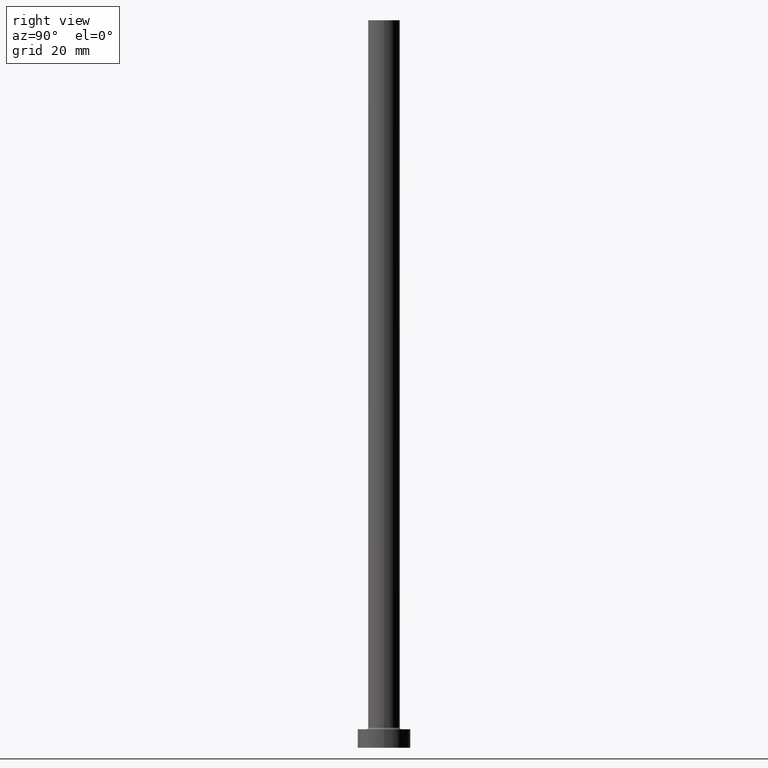
[diagram: clean part render]
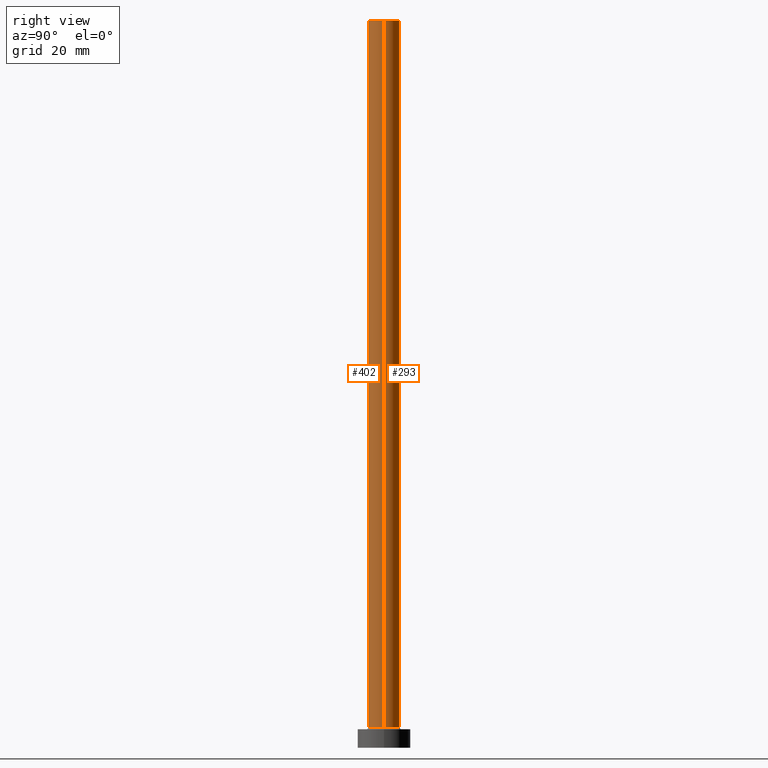
[diagram: same view with one multi-face feature highlighted, each face labeled with its STEP entity id]
A machine part, right view. The highlighted faces form ONE feature: a constant-radius fillet chain: 2 tangent blend faces with common blend radius 6 mm. The faces share edges in the B-rep.
Their STEP definitions:
[1] entity #293 (Cylinder):
#21 = DIRECTION ( 'NONE',  ( -0.000000000000000000, -0.000000000000000000, -1.000000000000000000 ) ) ;
#36 = CARTESIAN_POINT ( 'NONE',  ( 6.000000000000000888, 7.347880794884120722E-16, 7.699999999999985079 ) ) ;
#37 = VECTOR ( 'NONE', #21, 1000.000000000000000 ) ;
#43 = CARTESIAN_POINT ( 'NONE',  ( 0.000000000000000000, 0.000000000000000000, 275.0000000000000000 ) ) ;
#52 = EDGE_LOOP ( 'NONE', ( #254, #435, #53, #336 ) ) ;
#53 = ORIENTED_EDGE ( 'NONE', *, *, #355, .T. ) ;
#61 = AXIS2_PLACEMENT_3D ( 'NONE', #239, #384, #316 ) ;
#65 = EDGE_CURVE ( 'NONE', #230, #226, #204, .T. ) ;
#75 = VERTEX_POINT ( 'NONE', #36 ) ;
#85 = AXIS2_PLACEMENT_3D ( 'NONE', #369, #298, #337 ) ;
#150 = CARTESIAN_POINT ( 'NONE',  ( -6.000000000000000888, 0.000000000000000000, 7.699999999999985079 ) ) ;
#155 = FACE_OUTER_BOUND ( 'NONE', #52, .T. ) ;
#172 = CIRCLE ( 'NONE', #61, 6.000000000000000888 ) ;
#198 = CARTESIAN_POINT ( 'NONE',  ( 6.000000000000000888, 7.347880794884120722E-16, 275.0000000000000000 ) ) ;
#204 = LINE ( 'NONE', #421, #37 ) ;
#206 = LINE ( 'NONE', #198, #411 ) ;
#224 = CYLINDRICAL_SURFACE ( 'NONE', #85, 6.000000000000000888 ) ;
#226 = VERTEX_POINT ( 'NONE', #150 ) ;
#229 = CIRCLE ( 'NONE', #350, 6.000000000000000888 ) ;
#230 = VERTEX_POINT ( 'NONE', #333 ) ;
#239 = CARTESIAN_POINT ( 'NONE',  ( 0.000000000000000000, 0.000000000000000000, 7.699999999999985079 ) ) ;
#245 = EDGE_CURVE ( 'NONE', #374, #230, #229, .T. ) ;
#254 = ORIENTED_EDGE ( 'NONE', *, *, #245, .F. ) ;
#293 = ADVANCED_FACE ( 'NONE', ( #155 ), #224, .T. ) ;
#298 = DIRECTION ( 'NONE',  ( -0.000000000000000000, -0.000000000000000000, -1.000000000000000000 ) ) ;
#316 = DIRECTION ( 'NONE',  ( 1.000000000000000000, 0.000000000000000000, 0.000000000000000000 ) ) ;
#333 = CARTESIAN_POINT ( 'NONE',  ( -6.000000000000000888, 0.000000000000000000, 275.0000000000000000 ) ) ;
#336 = ORIENTED_EDGE ( 'NONE', *, *, #65, .F. ) ;
#337 = DIRECTION ( 'NONE',  ( -1.000000000000000000, 0.000000000000000000, 0.000000000000000000 ) ) ;
#350 = AXIS2_PLACEMENT_3D ( 'NONE', #43, #433, #367 ) ;
#355 = EDGE_CURVE ( 'NONE', #75, #226, #172, .T. ) ;
#367 = DIRECTION ( 'NONE',  ( 1.000000000000000000, 0.000000000000000000, 0.000000000000000000 ) ) ;
#369 = CARTESIAN_POINT ( 'NONE',  ( 0.000000000000000000, 0.000000000000000000, 275.0000000000000000 ) ) ;
#374 = VERTEX_POINT ( 'NONE', #394 ) ;
#378 = DIRECTION ( 'NONE',  ( -0.000000000000000000, -0.000000000000000000, -1.000000000000000000 ) ) ;
#384 = DIRECTION ( 'NONE',  ( 0.000000000000000000, 0.000000000000000000, 1.000000000000000000 ) ) ;
#394 = CARTESIAN_POINT ( 'NONE',  ( 6.000000000000000888, 7.347880794884120722E-16, 275.0000000000000000 ) ) ;
#411 = VECTOR ( 'NONE', #378, 1000.000000000000000 ) ;
#418 = EDGE_CURVE ( 'NONE', #374, #75, #206, .T. ) ;
#421 = CARTESIAN_POINT ( 'NONE',  ( -6.000000000000000888, 0.000000000000000000, 275.0000000000000000 ) ) ;
#433 = DIRECTION ( 'NONE',  ( 0.000000000000000000, 0.000000000000000000, 1.000000000000000000 ) ) ;
#435 = ORIENTED_EDGE ( 'NONE', *, *, #418, .T. ) ;
[2] entity #402 (Cylinder):
#21 = DIRECTION ( 'NONE',  ( -0.000000000000000000, -0.000000000000000000, -1.000000000000000000 ) ) ;
#36 = CARTESIAN_POINT ( 'NONE',  ( 6.000000000000000888, 7.347880794884120722E-16, 7.699999999999985079 ) ) ;
#37 = VECTOR ( 'NONE', #21, 1000.000000000000000 ) ;
#65 = EDGE_CURVE ( 'NONE', #230, #226, #204, .T. ) ;
#75 = VERTEX_POINT ( 'NONE', #36 ) ;
#83 = CARTESIAN_POINT ( 'NONE',  ( 0.000000000000000000, 0.000000000000000000, 275.0000000000000000 ) ) ;
#118 = ORIENTED_EDGE ( 'NONE', *, *, #418, .F. ) ;
#123 = CIRCLE ( 'NONE', #306, 6.000000000000000888 ) ;
#142 = CIRCLE ( 'NONE', #324, 6.000000000000000888 ) ;
#145 = DIRECTION ( 'NONE',  ( 1.000000000000000000, 0.000000000000000000, 0.000000000000000000 ) ) ;
#150 = CARTESIAN_POINT ( 'NONE',  ( -6.000000000000000888, 0.000000000000000000, 7.699999999999985079 ) ) ;
#154 = FACE_OUTER_BOUND ( 'NONE', #214, .T. ) ;
#179 = AXIS2_PLACEMENT_3D ( 'NONE', #218, #363, #297 ) ;
#198 = CARTESIAN_POINT ( 'NONE',  ( 6.000000000000000888, 7.347880794884120722E-16, 275.0000000000000000 ) ) ;
#204 = LINE ( 'NONE', #421, #37 ) ;
#206 = LINE ( 'NONE', #198, #411 ) ;
#212 = EDGE_CURVE ( 'NONE', #226, #75, #142, .T. ) ;
#214 = EDGE_LOOP ( 'NONE', ( #118, #340, #257, #217 ) ) ;
#217 = ORIENTED_EDGE ( 'NONE', *, *, #212, .T. ) ;
#218 = CARTESIAN_POINT ( 'NONE',  ( 0.000000000000000000, 0.000000000000000000, 275.0000000000000000 ) ) ;
#226 = VERTEX_POINT ( 'NONE', #150 ) ;
#230 = VERTEX_POINT ( 'NONE', #333 ) ;
#257 = ORIENTED_EDGE ( 'NONE', *, *, #65, .T. ) ;
#268 = EDGE_CURVE ( 'NONE', #230, #374, #123, .T. ) ;
#295 = DIRECTION ( 'NONE',  ( 1.000000000000000000, 0.000000000000000000, 0.000000000000000000 ) ) ;
#297 = DIRECTION ( 'NONE',  ( -1.000000000000000000, 0.000000000000000000, 0.000000000000000000 ) ) ;
#306 = AXIS2_PLACEMENT_3D ( 'NONE', #83, #399, #295 ) ;
#324 = AXIS2_PLACEMENT_3D ( 'NONE', #365, #438, #145 ) ;
#325 = CYLINDRICAL_SURFACE ( 'NONE', #179, 6.000000000000000888 ) ;
#333 = CARTESIAN_POINT ( 'NONE',  ( -6.000000000000000888, 0.000000000000000000, 275.0000000000000000 ) ) ;
#340 = ORIENTED_EDGE ( 'NONE', *, *, #268, .F. ) ;
#363 = DIRECTION ( 'NONE',  ( -0.000000000000000000, -0.000000000000000000, -1.000000000000000000 ) ) ;
#365 = CARTESIAN_POINT ( 'NONE',  ( 0.000000000000000000, 0.000000000000000000, 7.699999999999985079 ) ) ;
#374 = VERTEX_POINT ( 'NONE', #394 ) ;
#378 = DIRECTION ( 'NONE',  ( -0.000000000000000000, -0.000000000000000000, -1.000000000000000000 ) ) ;
#394 = CARTESIAN_POINT ( 'NONE',  ( 6.000000000000000888, 7.347880794884120722E-16, 275.0000000000000000 ) ) ;
#399 = DIRECTION ( 'NONE',  ( 0.000000000000000000, 0.000000000000000000, 1.000000000000000000 ) ) ;
#402 = ADVANCED_FACE ( 'NONE', ( #154 ), #325, .T. ) ;
#411 = VECTOR ( 'NONE', #378, 1000.000000000000000 ) ;
#418 = EDGE_CURVE ( 'NONE', #374, #75, #206, .T. ) ;
#421 = CARTESIAN_POINT ( 'NONE',  ( -6.000000000000000888, 0.000000000000000000, 275.0000000000000000 ) ) ;
#438 = DIRECTION ( 'NONE',  ( 0.000000000000000000, 0.000000000000000000, 1.000000000000000000 ) ) ;